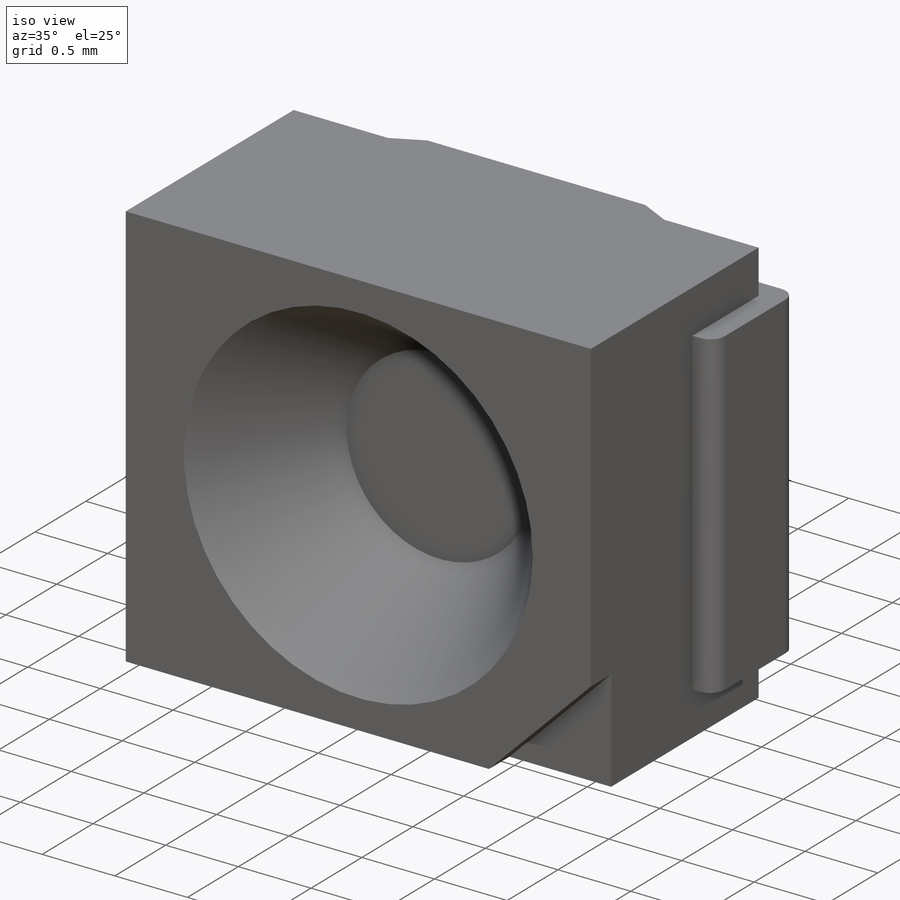
[diagram: iso view]
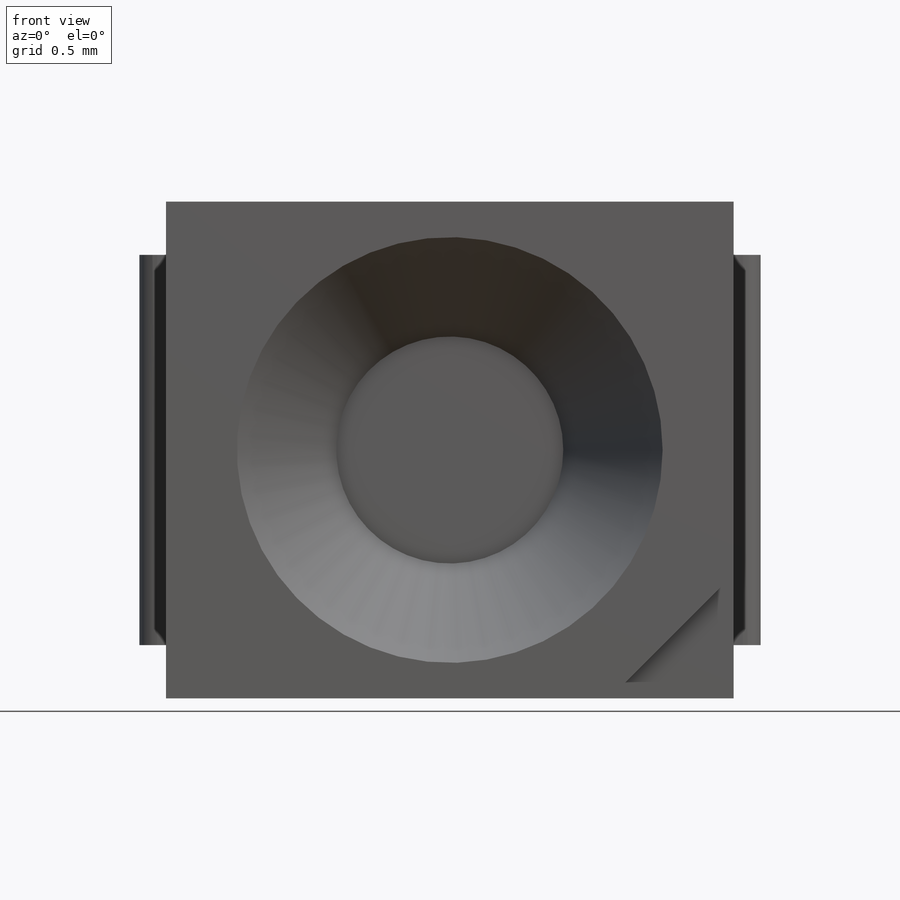
[diagram: front view]
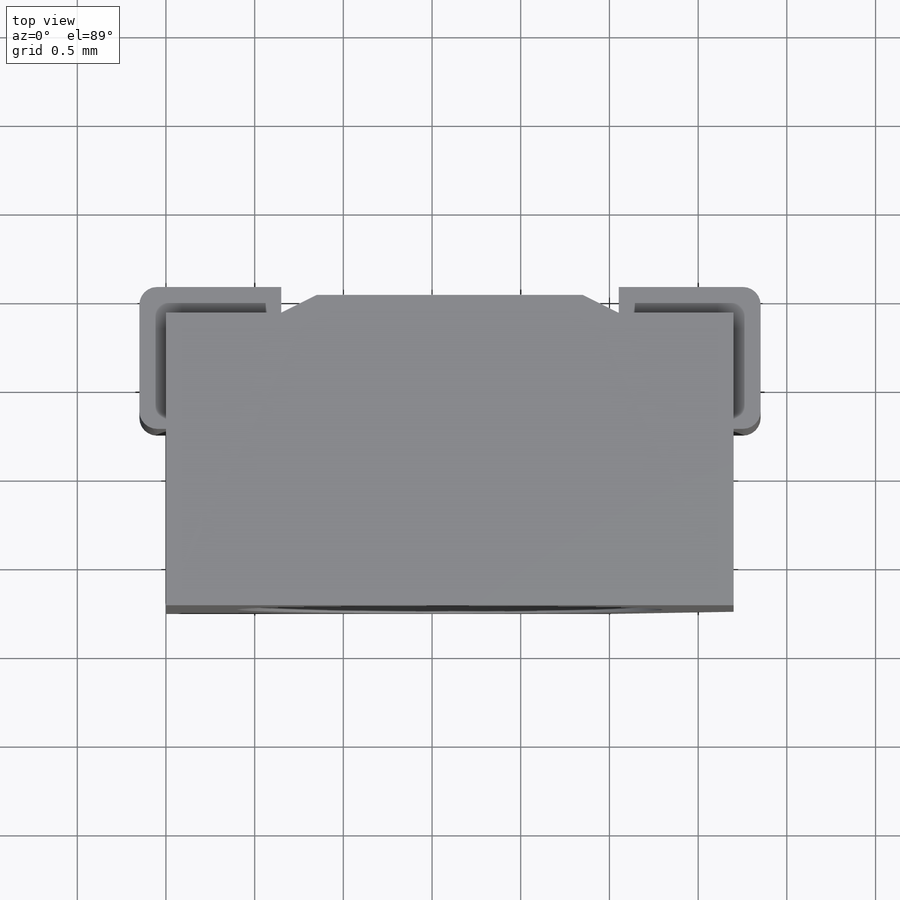
[diagram: top view]
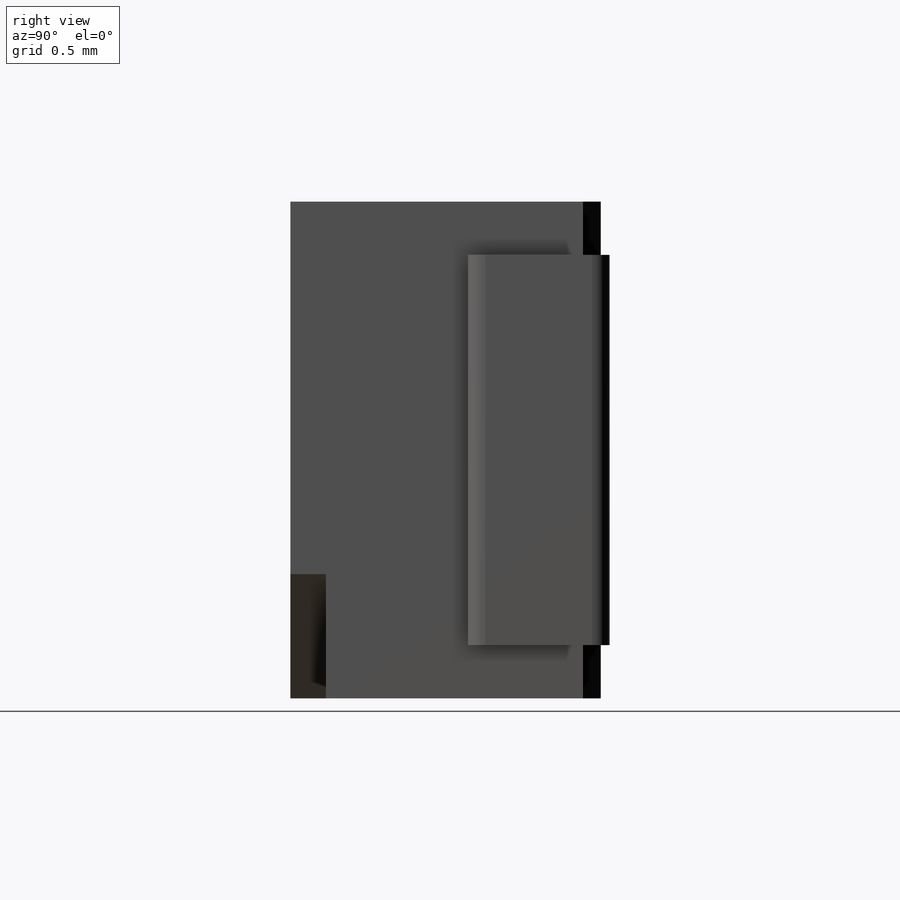
[diagram: right view]
SOLIDWORKS PART (.sldprt)
format: sldprt  version: not decoded by parser v0  size: 257,536 bytes
history: native  units: mm
features: sketch x7, cut_extrude x4, extrude x3, material x1, fillet x1 (+12 scaffold rows collapsed)
feature tree (28):
  scaffold x12  (default folders/planes/origin — collapsed)
  material  "Material <not specified>"
  sketch  "Sketch1"  dims[D1=3.2mm D2=2.8mm]
  extrude  "Boss-Extrude1"  Depth=1.75mm
  sketch  "Sketch2"  dims[D1=0.7mm D2=0.7mm]
  cut_extrude  "Cut-Extrude1"  Depth=0.2mm
  sketch  "Sketch3"  dims[D1=2.4mm]
  cut_extrude  "Cut-Extrude2"  Depth=0.8mm
  sketch  "Sketch5"  dims[D1=0.1mm D2=0.65mm D3=1.5mm D4=0.1mm D5=0.65mm]
  cut_extrude  "Cut-Extrude3"  [1 undecoded]
  sketch  "Sketch6"  dims[D1=0.8mm D2=2.2mm D3=0.8mm D4=2.2mm]
  extrude  "Boss-Extrude3"  Depth=0.15mm
  sketch  "Sketch7"
  extrude  "Boss-Extrude4"  Depth=0.65mm
  fillet  "Fillet1"  Radius=0.1mm
  sketch  "Sketch8"  dims[D1=0.6mm]
  cut_extrude  "Cut-Extrude4"  Depth=0.2mm
decode coverage: 13 of 15 modeling features carry decoded parameters
note: 1 parameter value undecoded
note: suppression state not decoded; provenance and decode notes live in map.json
